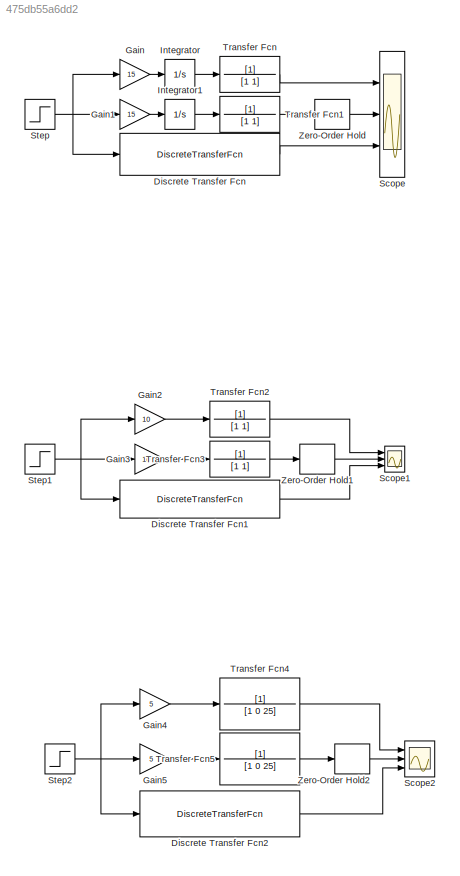
MODEL slx_475db55a6dd2
KIND model
CONFIG AbsTol = auto
CONFIG EnableMultiTasking = off
CONFIG FixedStep = auto
CONFIG MaxStep = auto
CONFIG MinStep = auto
CONFIG RelTol = 1e-3
CONFIG SampleTimeConstraint = Unconstrained
CONFIG SolverName = VariableStepAuto
CONFIG StartTime = 0.0
CONFIG StopTime = 10
BLOCK [DiscreteTransferFcn] Discrete Transfer Fcn
  Denominator = [1 -1.3678 0.3678]
  InputPortMap = u0
  Numerator = [5.5182 3.9636]
  Ports = [1, 1]
  SampleTime = 1
BLOCK [DiscreteTransferFcn] Discrete Transfer Fcn1
  Denominator = [1 -0.3679]
  InputPortMap = u0
  Numerator = [6.3212]
  Ports = [1, 1]
  SampleTime = 1
BLOCK [DiscreteTransferFcn] Discrete Transfer Fcn2
  Denominator = [5 -8.776 5]
  InputPortMap = u0
  Numerator = [0.1224 0.1224]
  Ports = [1, 1]
BLOCK [Gain] Gain
  Gain = 15
BLOCK [Gain] Gain1
  Gain = 15
BLOCK [Gain] Gain2
  Gain = 10
BLOCK [Gain] Gain3
  Gain = 10
BLOCK [Gain] Gain4
  Gain = 5
BLOCK [Gain] Gain5
  Gain = 5
BLOCK [Integrator] Integrator
  Ports = [1, 1]
BLOCK [Integrator] Integrator1
  Ports = [1, 1]
BLOCK [Scope] Scope
  Floating = off
  NumInputPorts = 3
  Ports = [3]
  ScopeSpecificationString = Simulink.scopes.TimeScopeBlockCfg('CurrentConfiguration', extmgr.ConfigurationSet(extmgr.Configuration('Core','General UI',true,'FigureColor',[1 1 1]),extmgr.Configuration('Core','Source UI',true),extmgr.Configuration('Sources','WiredSimulink',true),extmgr.Configuration('Visuals','Time Domain',true,'SerializedDisplays',{struct('MinYLimReal','-16.87509','MaxYLimReal','151.87577','YLabelReal','','Mi...<+1849ch>
BLOCK [Scope] Scope1
  Floating = off
  NumInputPorts = 3
  Ports = [3]
  ScopeSpecificationString = Simulink.scopes.TimeScopeBlockCfg('CurrentConfiguration', extmgr.ConfigurationSet(extmgr.Configuration('Core','General UI',true,'FigureColor',[1 1 1]),extmgr.Configuration('Core','Source UI',true),extmgr.Configuration('Sources','WiredSimulink',true,'DataLoggingVariableName','ScopeData1'),extmgr.Configuration('Visuals','Time Domain',true,'SerializedDisplays',{struct('MinYLimReal','-1.24998','MaxYLi...<+1884ch>
BLOCK [Scope] Scope2
  Floating = off
  NumInputPorts = 3
  Ports = [3]
  ScopeSpecificationString = Simulink.scopes.TimeScopeBlockCfg('CurrentConfiguration', extmgr.ConfigurationSet(extmgr.Configuration('Core','General UI',true,'FigureColor',[1 1 1]),extmgr.Configuration('Core','Source UI',true),extmgr.Configuration('Sources','WiredSimulink',true,'DataLoggingVariableName','ScopeData2'),extmgr.Configuration('Visuals','Time Domain',true,'SerializedDisplays',{struct('MinYLimReal','-0.05','MaxYLimRe...<+1875ch>
BLOCK [Step] Step
  Time = 0
BLOCK [Step] Step1
  SampleTime = 0
  Time = 0
BLOCK [Step] Step2
  SampleTime = 0
  Time = 0
BLOCK [TransferFcn] Transfer Fcn
  Denominator = [1 1]
BLOCK [TransferFcn] Transfer Fcn1
  Denominator = [1 1]
BLOCK [TransferFcn] Transfer Fcn2
  Denominator = [1 1]
BLOCK [TransferFcn] Transfer Fcn3
  Denominator = [1 1]
BLOCK [TransferFcn] Transfer Fcn4
  Denominator = [1 0 25]
BLOCK [TransferFcn] Transfer Fcn5
  Denominator = [1 0 25]
BLOCK [ZeroOrderHold] Zero-Order Hold
BLOCK [ZeroOrderHold] Zero-Order Hold1
BLOCK [ZeroOrderHold] Zero-Order Hold2
  SampleTime = 0.1
LINE Discrete Transfer Fcn1:1 -> Scope1:3
LINE Discrete Transfer Fcn2:1 -> Scope2:3
LINE Discrete Transfer Fcn:1 -> Scope:3
LINE Gain1:1 -> Integrator1:1
LINE Gain2:1 -> Transfer Fcn2:1
LINE Gain3:1 -> Transfer Fcn3:1
LINE Gain4:1 -> Transfer Fcn4:1
LINE Gain5:1 -> Transfer Fcn5:1
LINE Gain:1 -> Integrator:1
LINE Integrator1:1 -> Transfer Fcn1:1
LINE Integrator:1 -> Transfer Fcn:1
NET Step1:1 -> Discrete Transfer Fcn1:1, Gain2:1, Gain3:1
NET Step2:1 -> Discrete Transfer Fcn2:1, Gain4:1, Gain5:1
NET Step:1 -> Discrete Transfer Fcn:1, Gain1:1, Gain:1
LINE Transfer Fcn1:1 -> Zero-Order Hold:1
LINE Transfer Fcn2:1 -> Scope1:1
LINE Transfer Fcn3:1 -> Zero-Order Hold1:1
LINE Transfer Fcn4:1 -> Scope2:1
LINE Transfer Fcn5:1 -> Zero-Order Hold2:1
LINE Transfer Fcn:1 -> Scope:1
LINE Zero-Order Hold1:1 -> Scope1:2
LINE Zero-Order Hold2:1 -> Scope2:2
LINE Zero-Order Hold:1 -> Scope:2
note: NET lines group one-source signal fan-out (src -> all destinations, sorted); 1:1 wires keep LINE
